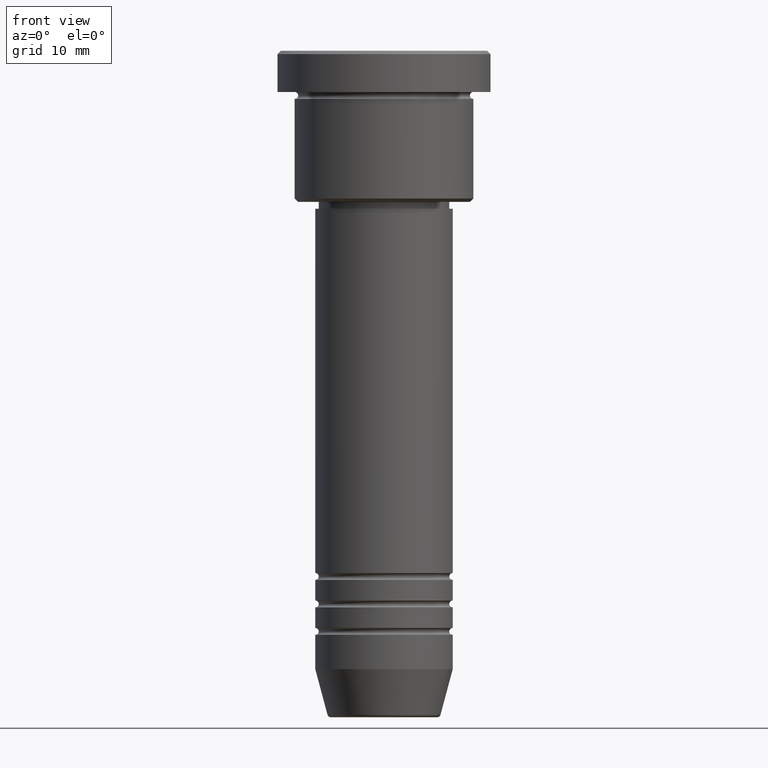
[diagram: clean part render]
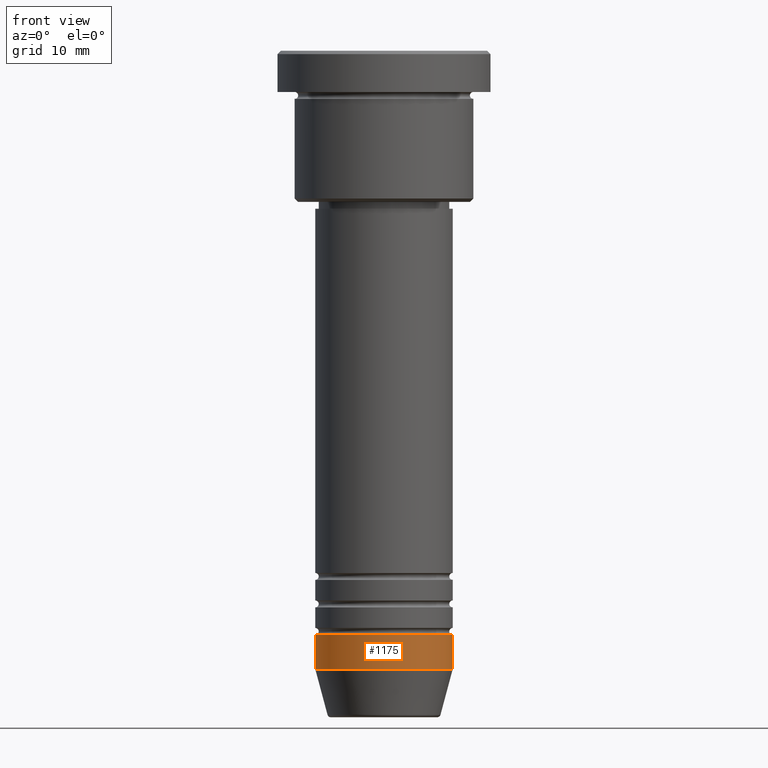
[diagram: same view with one face highlighted and labeled with its STEP entity id]
A machine part, front view. The second image highlights one B-rep face of the part: STEP entity #1175.
In plain terms, the highlighted cylindrical surface (partial cylindrical patch) has radius 10 mm, axis along (-0, -0, 1).
Its self-contained STEP definition (entity closure, byte-faithful):
#14 = ORIENTED_EDGE ( 'NONE', *, *, #256, .T. ) ;
#18 = ORIENTED_EDGE ( 'NONE', *, *, #1070, .F. ) ;
#39 = CARTESIAN_POINT ( 'NONE',  ( -10.00000000000000000, 1.224646799147353256E-15, -84.99999999999998579 ) ) ;
#64 = DIRECTION ( 'NONE',  ( -0.000000000000000000, -0.000000000000000000, 1.000000000000000000 ) ) ;
#79 = VECTOR ( 'NONE', #112, 1000.000000000000000 ) ;
#84 = DIRECTION ( 'NONE',  ( -0.000000000000000000, -0.000000000000000000, 1.000000000000000000 ) ) ;
#88 = EDGE_CURVE ( 'NONE', #894, #665, #629, .T. ) ;
#112 = DIRECTION ( 'NONE',  ( -0.000000000000000000, -0.000000000000000000, 1.000000000000000000 ) ) ;
#136 = CIRCLE ( 'NONE', #803, 10.00000000000000000 ) ;
#169 = CYLINDRICAL_SURFACE ( 'NONE', #901, 10.00000000000000000 ) ;
#216 = CARTESIAN_POINT ( 'NONE',  ( 10.00000000000000000, 0.000000000000000000, -90.00000000000000000 ) ) ;
#232 = CARTESIAN_POINT ( 'NONE',  ( -10.00000000000000000, 1.224646799147353256E-15, 0.000000000000000000 ) ) ;
#256 = EDGE_CURVE ( 'NONE', #572, #888, #136, .T. ) ;
#330 = DIRECTION ( 'NONE',  ( -0.000000000000000000, -0.000000000000000000, 1.000000000000000000 ) ) ;
#342 = EDGE_LOOP ( 'NONE', ( #18, #14, #1117, #777 ) ) ;
#474 = LINE ( 'NONE', #1011, #79 ) ;
#507 = CARTESIAN_POINT ( 'NONE',  ( -10.00000000000000000, 1.224646799147353256E-15, -90.00000000000000000 ) ) ;
#529 = DIRECTION ( 'NONE',  ( 1.000000000000000000, 0.000000000000000000, 0.000000000000000000 ) ) ;
#572 = VERTEX_POINT ( 'NONE', #507 ) ;
#605 = DIRECTION ( 'NONE',  ( -0.000000000000000000, -0.000000000000000000, 1.000000000000000000 ) ) ;
#625 = CARTESIAN_POINT ( 'NONE',  ( 0.000000000000000000, 0.000000000000000000, -90.00000000000000000 ) ) ;
#629 = CIRCLE ( 'NONE', #1013, 10.00000000000000000 ) ;
#665 = VERTEX_POINT ( 'NONE', #1083 ) ;
#676 = DIRECTION ( 'NONE',  ( 1.000000000000000000, 0.000000000000000000, 0.000000000000000000 ) ) ;
#702 = LINE ( 'NONE', #232, #755 ) ;
#729 = EDGE_CURVE ( 'NONE', #888, #665, #474, .T. ) ;
#755 = VECTOR ( 'NONE', #605, 1000.000000000000000 ) ;
#777 = ORIENTED_EDGE ( 'NONE', *, *, #88, .F. ) ;
#803 = AXIS2_PLACEMENT_3D ( 'NONE', #625, #64, #993 ) ;
#888 = VERTEX_POINT ( 'NONE', #216 ) ;
#894 = VERTEX_POINT ( 'NONE', #39 ) ;
#901 = AXIS2_PLACEMENT_3D ( 'NONE', #1084, #84, #529 ) ;
#993 = DIRECTION ( 'NONE',  ( 1.000000000000000000, 0.000000000000000000, 0.000000000000000000 ) ) ;
#1011 = CARTESIAN_POINT ( 'NONE',  ( 10.00000000000000000, 0.000000000000000000, 0.000000000000000000 ) ) ;
#1013 = AXIS2_PLACEMENT_3D ( 'NONE', #1049, #330, #676 ) ;
#1049 = CARTESIAN_POINT ( 'NONE',  ( 0.000000000000000000, 0.000000000000000000, -84.99999999999998579 ) ) ;
#1070 = EDGE_CURVE ( 'NONE', #572, #894, #702, .T. ) ;
#1083 = CARTESIAN_POINT ( 'NONE',  ( 10.00000000000000000, 0.000000000000000000, -84.99999999999998579 ) ) ;
#1084 = CARTESIAN_POINT ( 'NONE',  ( 0.000000000000000000, 0.000000000000000000, 0.000000000000000000 ) ) ;
#1090 = FACE_OUTER_BOUND ( 'NONE', #342, .T. ) ;
#1117 = ORIENTED_EDGE ( 'NONE', *, *, #729, .T. ) ;
#1175 = ADVANCED_FACE ( 'NONE', ( #1090 ), #169, .T. ) ;